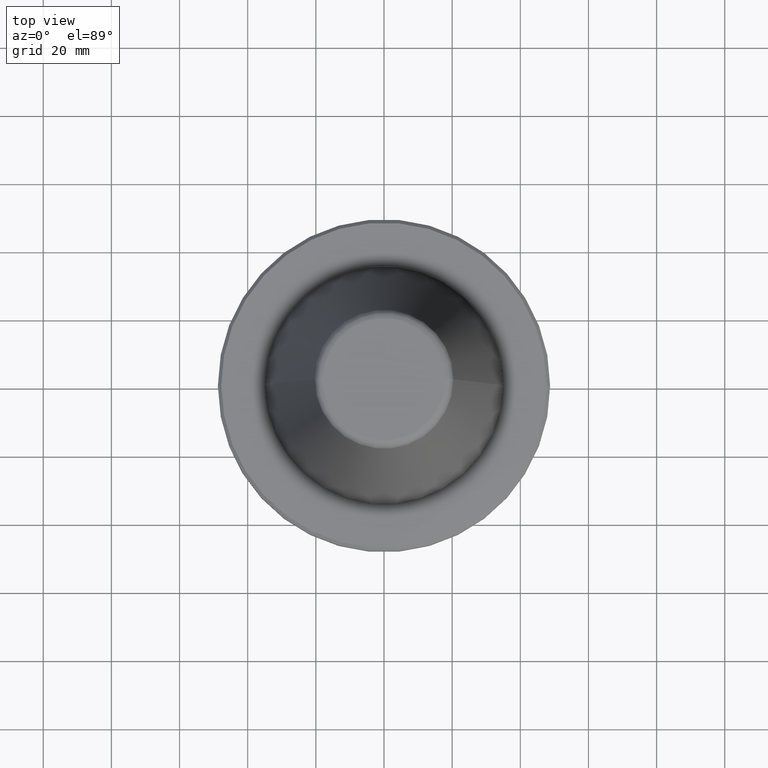
[diagram: clean part render]
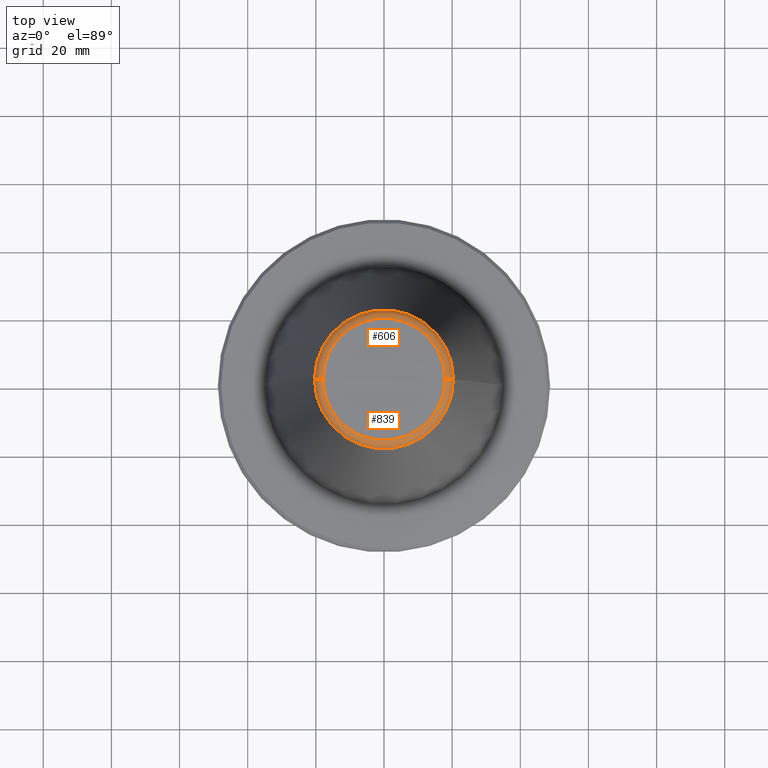
[diagram: same view with one multi-face feature highlighted, each face labeled with its STEP entity id]
A machine part, top view. The highlighted faces form ONE feature: a constant-radius fillet chain: 2 tangent blend faces with common blend radius 2.5 mm. The faces share edges in the B-rep.
Their STEP definitions:
[1] entity #606 (Torus):
#14 = DIRECTION ( 'NONE',  ( -0.0000000000000000000, -0.0000000000000000000, 1.000000000000000000 ) ) ;
#26 = CARTESIAN_POINT ( 'NONE',  ( -17.92446055806129500, 2.346591844926584100E-015, 101.7500000000000900 ) ) ;
#60 = AXIS2_PLACEMENT_3D ( 'NONE', #394, #455, #329 ) ;
#94 = AXIS2_PLACEMENT_3D ( 'NONE', #689, #14, #171 ) ;
#121 = DIRECTION ( 'NONE',  ( 0.0000000000000000000, 0.0000000000000000000, -1.000000000000000000 ) ) ;
#171 = DIRECTION ( 'NONE',  ( 1.000000000000000000, 0.0000000000000000000, 0.0000000000000000000 ) ) ;
#180 = VERTEX_POINT ( 'NONE', #877 ) ;
#218 = CIRCLE ( 'NONE', #578, 20.39829252569114000 ) ;
#258 = DIRECTION ( 'NONE',  ( -1.000000000000000000, 1.224646799147353500E-016, 0.0000000000000000000 ) ) ;
#287 = EDGE_CURVE ( 'NONE', #459, #180, #806, .T. ) ;
#320 = CIRCLE ( 'NONE', #94, 17.92446055806129500 ) ;
#329 = DIRECTION ( 'NONE',  ( 1.000000000000000000, 0.0000000000000000000, 0.0000000000000000000 ) ) ;
#394 = CARTESIAN_POINT ( 'NONE',  ( 0.0000000000000000000, 0.0000000000000000000, 99.25000000000000000 ) ) ;
#406 = EDGE_LOOP ( 'NONE', ( #842, #796, #922, #658 ) ) ;
#413 = CARTESIAN_POINT ( 'NONE',  ( -17.92446055806129500, 2.195113324887274600E-015, 99.25000000000000000 ) ) ;
#424 = CIRCLE ( 'NONE', #536, 2.500000000000082200 ) ;
#436 = VERTEX_POINT ( 'NONE', #26 ) ;
#455 = DIRECTION ( 'NONE',  ( -0.0000000000000000000, -0.0000000000000000000, 1.000000000000000000 ) ) ;
#459 = VERTEX_POINT ( 'NONE', #487 ) ;
#475 = CARTESIAN_POINT ( 'NONE',  ( -20.39829252569114000, 0.0000000000000000000, 99.61077055857353500 ) ) ;
#487 = CARTESIAN_POINT ( 'NONE',  ( 20.39829252569114000, 3.387574655494023600E-015, 99.61077055857353500 ) ) ;
#536 = AXIS2_PLACEMENT_3D ( 'NONE', #413, #884, #258 ) ;
#562 = TOROIDAL_SURFACE ( 'NONE', #60, 17.92446055806129500, 2.500000000000083000 ) ;
#578 = AXIS2_PLACEMENT_3D ( 'NONE', #936, #998, #899 ) ;
#606 = ADVANCED_FACE ( 'NONE', ( #826 ), #562, .T. ) ;
#658 = ORIENTED_EDGE ( 'NONE', *, *, #287, .F. ) ;
#659 = DIRECTION ( 'NONE',  ( 0.0000000000000000000, -1.000000000000000000, 0.0000000000000000000 ) ) ;
#673 = VERTEX_POINT ( 'NONE', #475 ) ;
#689 = CARTESIAN_POINT ( 'NONE',  ( 0.0000000000000000000, 0.0000000000000000000, 101.7500000000000900 ) ) ;
#738 = EDGE_CURVE ( 'NONE', #673, #436, #424, .T. ) ;
#741 = CARTESIAN_POINT ( 'NONE',  ( 17.92446055806129500, 0.0000000000000000000, 99.25000000000000000 ) ) ;
#747 = EDGE_CURVE ( 'NONE', #459, #673, #218, .T. ) ;
#796 = ORIENTED_EDGE ( 'NONE', *, *, #738, .T. ) ;
#806 = CIRCLE ( 'NONE', #819, 2.500000000000085300 ) ;
#819 = AXIS2_PLACEMENT_3D ( 'NONE', #741, #659, #121 ) ;
#826 = FACE_OUTER_BOUND ( 'NONE', #406, .T. ) ;
#834 = EDGE_CURVE ( 'NONE', #180, #436, #320, .T. ) ;
#842 = ORIENTED_EDGE ( 'NONE', *, *, #747, .T. ) ;
#877 = CARTESIAN_POINT ( 'NONE',  ( 17.92446055806129500, 0.0000000000000000000, 101.7500000000000900 ) ) ;
#884 = DIRECTION ( 'NONE',  ( 1.224646799147353200E-016, 1.000000000000000000, 0.0000000000000000000 ) ) ;
#899 = DIRECTION ( 'NONE',  ( 1.000000000000000000, 0.0000000000000000000, 0.0000000000000000000 ) ) ;
#922 = ORIENTED_EDGE ( 'NONE', *, *, #834, .F. ) ;
#936 = CARTESIAN_POINT ( 'NONE',  ( 0.0000000000000000000, 0.0000000000000000000, 99.61077055857353500 ) ) ;
#998 = DIRECTION ( 'NONE',  ( -0.0000000000000000000, -0.0000000000000000000, 1.000000000000000000 ) ) ;
[2] entity #839 (Torus):
#26 = CARTESIAN_POINT ( 'NONE',  ( -17.92446055806129500, 2.346591844926584100E-015, 101.7500000000000900 ) ) ;
#92 = ORIENTED_EDGE ( 'NONE', *, *, #758, .T. ) ;
#98 = DIRECTION ( 'NONE',  ( -0.0000000000000000000, -0.0000000000000000000, 1.000000000000000000 ) ) ;
#115 = TOROIDAL_SURFACE ( 'NONE', #242, 17.92446055806129500, 2.500000000000083000 ) ;
#119 = ORIENTED_EDGE ( 'NONE', *, *, #738, .F. ) ;
#121 = DIRECTION ( 'NONE',  ( 0.0000000000000000000, 0.0000000000000000000, -1.000000000000000000 ) ) ;
#180 = VERTEX_POINT ( 'NONE', #877 ) ;
#242 = AXIS2_PLACEMENT_3D ( 'NONE', #870, #98, #335 ) ;
#255 = DIRECTION ( 'NONE',  ( 1.000000000000000000, 0.0000000000000000000, 0.0000000000000000000 ) ) ;
#258 = DIRECTION ( 'NONE',  ( -1.000000000000000000, 1.224646799147353500E-016, 0.0000000000000000000 ) ) ;
#287 = EDGE_CURVE ( 'NONE', #459, #180, #806, .T. ) ;
#318 = ORIENTED_EDGE ( 'NONE', *, *, #439, .F. ) ;
#335 = DIRECTION ( 'NONE',  ( 1.000000000000000000, 0.0000000000000000000, 0.0000000000000000000 ) ) ;
#345 = AXIS2_PLACEMENT_3D ( 'NONE', #876, #726, #255 ) ;
#413 = CARTESIAN_POINT ( 'NONE',  ( -17.92446055806129500, 2.195113324887274600E-015, 99.25000000000000000 ) ) ;
#424 = CIRCLE ( 'NONE', #536, 2.500000000000082200 ) ;
#436 = VERTEX_POINT ( 'NONE', #26 ) ;
#439 = EDGE_CURVE ( 'NONE', #436, #180, #728, .T. ) ;
#459 = VERTEX_POINT ( 'NONE', #487 ) ;
#475 = CARTESIAN_POINT ( 'NONE',  ( -20.39829252569114000, 0.0000000000000000000, 99.61077055857353500 ) ) ;
#487 = CARTESIAN_POINT ( 'NONE',  ( 20.39829252569114000, 3.387574655494023600E-015, 99.61077055857353500 ) ) ;
#533 = EDGE_LOOP ( 'NONE', ( #119, #92, #722, #318 ) ) ;
#536 = AXIS2_PLACEMENT_3D ( 'NONE', #413, #884, #258 ) ;
#544 = FACE_OUTER_BOUND ( 'NONE', #533, .T. ) ;
#555 = CARTESIAN_POINT ( 'NONE',  ( 0.0000000000000000000, 0.0000000000000000000, 99.61077055857353500 ) ) ;
#610 = CIRCLE ( 'NONE', #740, 20.39829252569114000 ) ;
#659 = DIRECTION ( 'NONE',  ( 0.0000000000000000000, -1.000000000000000000, 0.0000000000000000000 ) ) ;
#673 = VERTEX_POINT ( 'NONE', #475 ) ;
#709 = DIRECTION ( 'NONE',  ( 1.000000000000000000, 0.0000000000000000000, 0.0000000000000000000 ) ) ;
#722 = ORIENTED_EDGE ( 'NONE', *, *, #287, .T. ) ;
#726 = DIRECTION ( 'NONE',  ( -0.0000000000000000000, -0.0000000000000000000, 1.000000000000000000 ) ) ;
#728 = CIRCLE ( 'NONE', #345, 17.92446055806129500 ) ;
#738 = EDGE_CURVE ( 'NONE', #673, #436, #424, .T. ) ;
#740 = AXIS2_PLACEMENT_3D ( 'NONE', #555, #857, #709 ) ;
#741 = CARTESIAN_POINT ( 'NONE',  ( 17.92446055806129500, 0.0000000000000000000, 99.25000000000000000 ) ) ;
#758 = EDGE_CURVE ( 'NONE', #673, #459, #610, .T. ) ;
#806 = CIRCLE ( 'NONE', #819, 2.500000000000085300 ) ;
#819 = AXIS2_PLACEMENT_3D ( 'NONE', #741, #659, #121 ) ;
#839 = ADVANCED_FACE ( 'NONE', ( #544 ), #115, .T. ) ;
#857 = DIRECTION ( 'NONE',  ( -0.0000000000000000000, -0.0000000000000000000, 1.000000000000000000 ) ) ;
#870 = CARTESIAN_POINT ( 'NONE',  ( 0.0000000000000000000, 0.0000000000000000000, 99.25000000000000000 ) ) ;
#876 = CARTESIAN_POINT ( 'NONE',  ( 0.0000000000000000000, 0.0000000000000000000, 101.7500000000000900 ) ) ;
#877 = CARTESIAN_POINT ( 'NONE',  ( 17.92446055806129500, 0.0000000000000000000, 101.7500000000000900 ) ) ;
#884 = DIRECTION ( 'NONE',  ( 1.224646799147353200E-016, 1.000000000000000000, 0.0000000000000000000 ) ) ;